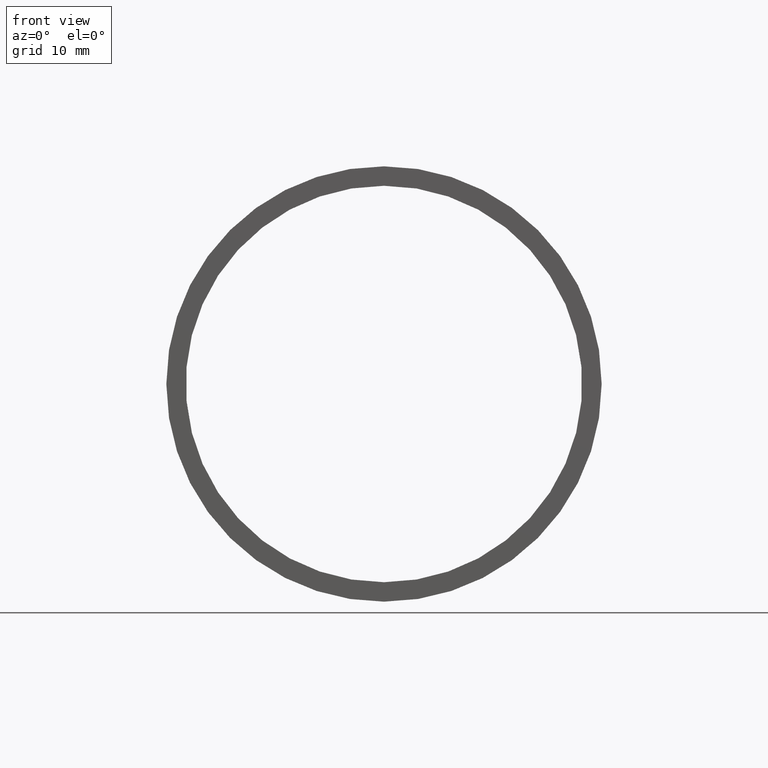
[diagram: clean part render]
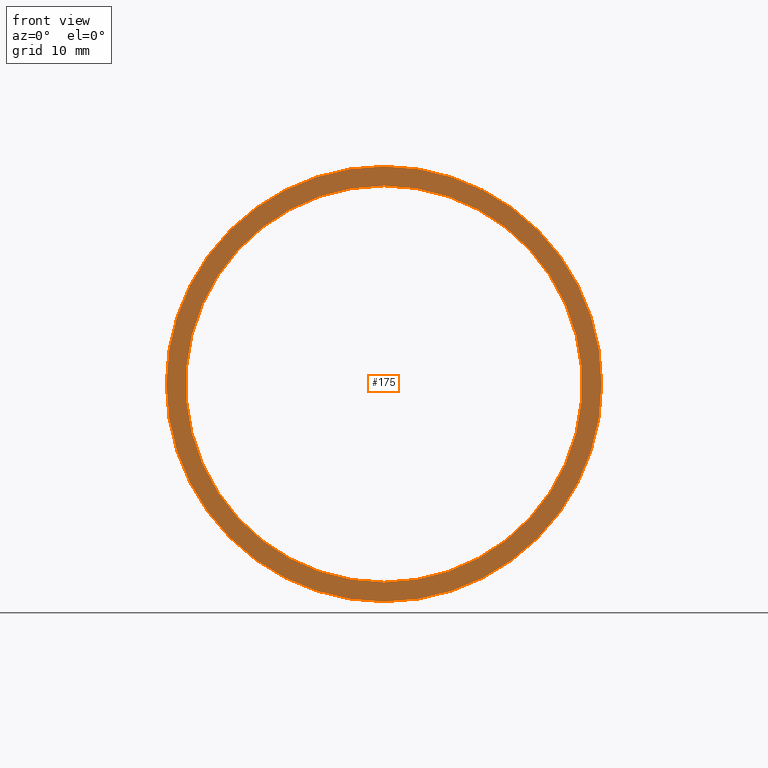
[diagram: same view with one face highlighted and labeled with its STEP entity id]
A machine part, front view. The second image highlights one B-rep face of the part: STEP entity #175.
In plain terms, the highlighted planar face has unit normal (-0, 1, 0).
Its self-contained STEP definition (entity closure, byte-faithful):
#2 = CARTESIAN_POINT ( 'NONE',  ( 3.122849337825752600E-015, -2.775557561562891400E-014, -25.50000000000001400 ) ) ;
#5 = FACE_BOUND ( 'NONE', #223, .T. ) ;
#17 = DIRECTION ( 'NONE',  ( -0.0000000000000000000, 1.000000000000000000, -0.0000000000000000000 ) ) ;
#19 = PLANE ( 'NONE',  #36 ) ;
#27 = AXIS2_PLACEMENT_3D ( 'NONE', #168, #56, #57 ) ;
#33 = FACE_OUTER_BOUND ( 'NONE', #59, .T. ) ;
#35 = CARTESIAN_POINT ( 'NONE',  ( 0.0000000000000000000, -2.775557561562891400E-014, 28.00000000000002100 ) ) ;
#36 = AXIS2_PLACEMENT_3D ( 'NONE', #224, #242, #225 ) ;
#41 = DIRECTION ( 'NONE',  ( 0.0000000000000000000, 0.0000000000000000000, 1.000000000000000000 ) ) ;
#47 = ORIENTED_EDGE ( 'NONE', *, *, #69, .T. ) ;
#49 = DIRECTION ( 'NONE',  ( 0.0000000000000000000, 0.0000000000000000000, 1.000000000000000000 ) ) ;
#56 = DIRECTION ( 'NONE',  ( -0.0000000000000000000, 1.000000000000000000, -0.0000000000000000000 ) ) ;
#57 = DIRECTION ( 'NONE',  ( 0.0000000000000000000, 0.0000000000000000000, 1.000000000000000000 ) ) ;
#59 = EDGE_LOOP ( 'NONE', ( #143, #195 ) ) ;
#60 = AXIS2_PLACEMENT_3D ( 'NONE', #130, #17, #41 ) ;
#69 = EDGE_CURVE ( 'NONE', #178, #109, #102, .T. ) ;
#80 = CIRCLE ( 'NONE', #27, 28.00000000000002100 ) ;
#82 = CIRCLE ( 'NONE', #169, 25.50000000000001400 ) ;
#85 = CARTESIAN_POINT ( 'NONE',  ( 0.0000000000000000000, -2.775557561562891400E-014, 0.0000000000000000000 ) ) ;
#91 = VERTEX_POINT ( 'NONE', #35 ) ;
#102 = CIRCLE ( 'NONE', #131, 25.50000000000001400 ) ;
#105 = EDGE_CURVE ( 'NONE', #91, #203, #80, .T. ) ;
#109 = VERTEX_POINT ( 'NONE', #2 ) ;
#127 = DIRECTION ( 'NONE',  ( -0.0000000000000000000, 1.000000000000000000, -0.0000000000000000000 ) ) ;
#130 = CARTESIAN_POINT ( 'NONE',  ( 0.0000000000000000000, -2.775557561562891400E-014, 0.0000000000000000000 ) ) ;
#131 = AXIS2_PLACEMENT_3D ( 'NONE', #85, #127, #49 ) ;
#143 = ORIENTED_EDGE ( 'NONE', *, *, #105, .F. ) ;
#152 = DIRECTION ( 'NONE',  ( -0.0000000000000000000, 1.000000000000000000, -0.0000000000000000000 ) ) ;
#168 = CARTESIAN_POINT ( 'NONE',  ( 0.0000000000000000000, -2.775557561562891400E-014, 0.0000000000000000000 ) ) ;
#169 = AXIS2_PLACEMENT_3D ( 'NONE', #202, #152, #183 ) ;
#175 = ADVANCED_FACE ( 'NONE', ( #33, #5 ), #19, .F. ) ;
#178 = VERTEX_POINT ( 'NONE', #185 ) ;
#180 = EDGE_CURVE ( 'NONE', #109, #178, #82, .T. ) ;
#183 = DIRECTION ( 'NONE',  ( 0.0000000000000000000, 0.0000000000000000000, 1.000000000000000000 ) ) ;
#185 = CARTESIAN_POINT ( 'NONE',  ( 0.0000000000000000000, -2.775557561562891400E-014, 25.50000000000001400 ) ) ;
#187 = EDGE_CURVE ( 'NONE', #203, #91, #237, .T. ) ;
#195 = ORIENTED_EDGE ( 'NONE', *, *, #187, .F. ) ;
#202 = CARTESIAN_POINT ( 'NONE',  ( 0.0000000000000000000, -2.775557561562891400E-014, 0.0000000000000000000 ) ) ;
#203 = VERTEX_POINT ( 'NONE', #205 ) ;
#205 = CARTESIAN_POINT ( 'NONE',  ( 3.429011037612591600E-015, -2.775557561562891400E-014, -28.00000000000002100 ) ) ;
#209 = ORIENTED_EDGE ( 'NONE', *, *, #180, .T. ) ;
#223 = EDGE_LOOP ( 'NONE', ( #47, #209 ) ) ;
#224 = CARTESIAN_POINT ( 'NONE',  ( 25.50000000000001400, -1.390324872067691800E-014, 0.0000000000000000000 ) ) ;
#225 = DIRECTION ( 'NONE',  ( 0.0000000000000000000, 0.0000000000000000000, 1.000000000000000000 ) ) ;
#237 = CIRCLE ( 'NONE', #60, 28.00000000000002100 ) ;
#242 = DIRECTION ( 'NONE',  ( -0.0000000000000000000, 1.000000000000000000, 0.0000000000000000000 ) ) ;